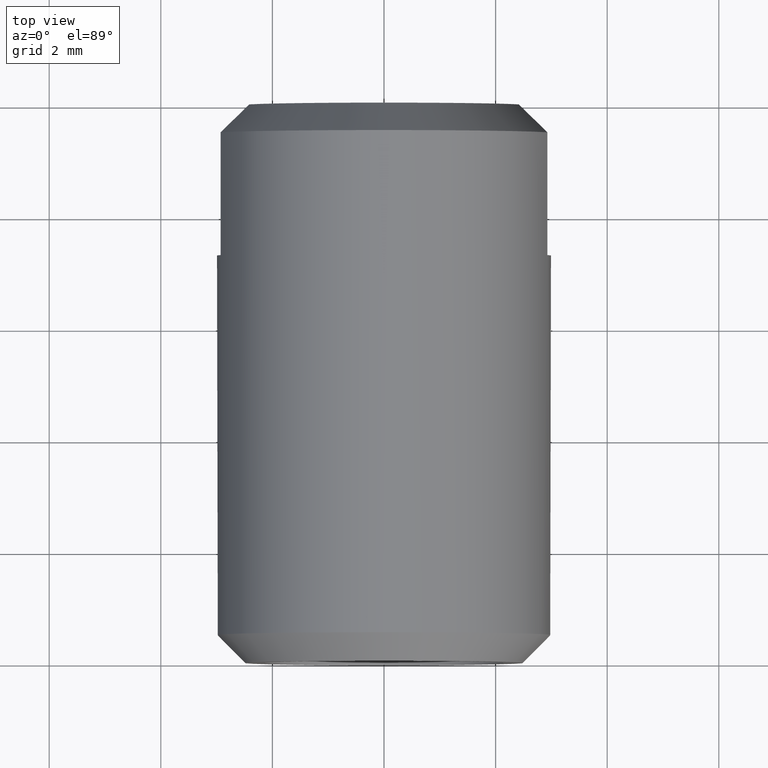
[diagram: clean part render]
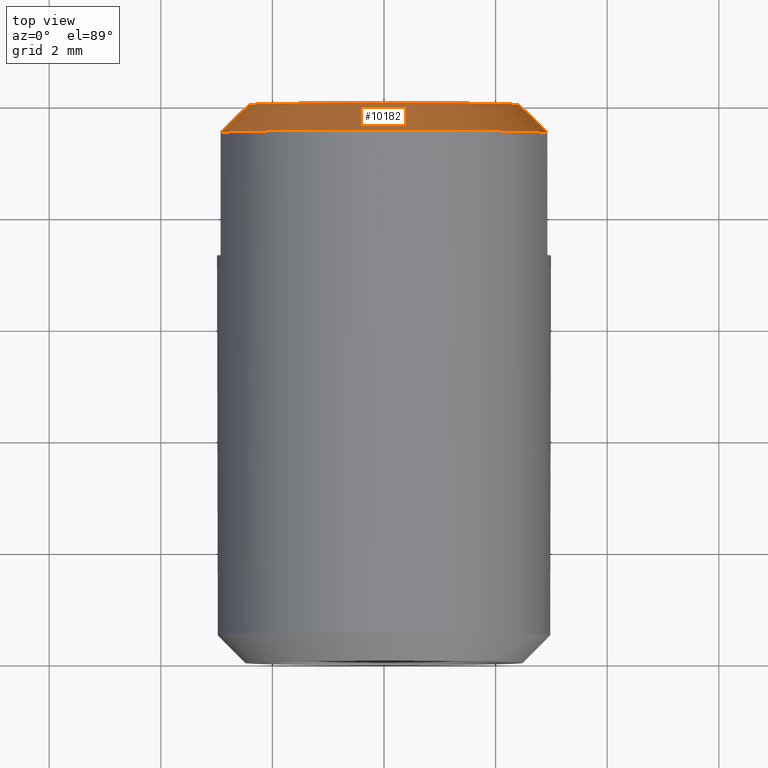
[diagram: same view with one face highlighted and labeled with its STEP entity id]
A machine part, top view. The second image highlights one B-rep face of the part: STEP entity #10182.
In plain terms, the highlighted conical surface has half-angle 45 deg.
Its self-contained STEP definition (entity closure, byte-faithful):
#372 = AXIS2_PLACEMENT_3D ( 'NONE', #9549, #14296, #7017 ) ;
#377 = EDGE_CURVE ( 'NONE', #1728, #11293, #15597, .T. ) ;
#660 = CARTESIAN_POINT ( 'NONE',  ( -2.928736929121494200, 9.500000000000000000, 0.6500000000000004700 ) ) ;
#1126 = CIRCLE ( 'NONE', #1577, 3.000000000000000000 ) ;
#1163 = CONICAL_SURFACE ( 'NONE', #6546, 3.000000000000000000, 0.7853981633974500600 ) ;
#1241 = CARTESIAN_POINT ( 'NONE',  ( 2.928736929121496900, 9.499999999999998200, 0.6499999999999999100 ) ) ;
#1577 = AXIS2_PLACEMENT_3D ( 'NONE', #15683, #3372, #9374 ) ;
#1728 = VERTEX_POINT ( 'NONE', #7981 ) ;
#2469 = VERTEX_POINT ( 'NONE', #15617 ) ;
#2811 = CARTESIAN_POINT ( 'NONE',  ( 2.414021540914660100, 10.00000000000000000, 0.6499999999999999100 ) ) ;
#3372 = DIRECTION ( 'NONE',  ( -0.0000000000000000000, -1.000000000000000000, -0.0000000000000000000 ) ) ;
#3466 = ORIENTED_EDGE ( 'NONE', *, *, #9850, .F. ) ;
#5298 = CARTESIAN_POINT ( 'NONE',  ( 2.586095618865052800, 9.833843787677890800, 0.6499999999999999100 ) ) ;
#5663 = ORIENTED_EDGE ( 'NONE', *, *, #5742, .F. ) ;
#5742 = EDGE_CURVE ( 'NONE', #2469, #11696, #12481, .T. ) ;
#5816 = ORIENTED_EDGE ( 'NONE', *, *, #377, .F. ) ;
#6546 = AXIS2_PLACEMENT_3D ( 'NONE', #7167, #8387, #7223 ) ;
#7017 = DIRECTION ( 'NONE',  ( 0.0000000000000000000, 0.0000000000000000000, 1.000000000000000000 ) ) ;
#7167 = CARTESIAN_POINT ( 'NONE',  ( 0.0000000000000000000, 9.500000000000000000, 0.0000000000000000000 ) ) ;
#7223 = DIRECTION ( 'NONE',  ( 0.0000000000000000000, 0.0000000000000000000, -1.000000000000000000 ) ) ;
#7981 = CARTESIAN_POINT ( 'NONE',  ( 2.414021540914660100, 10.00000000000000000, 0.6499999999999999100 ) ) ;
#8387 = DIRECTION ( 'NONE',  ( -0.0000000000000000000, -1.000000000000000000, -0.0000000000000000000 ) ) ;
#9283 = CARTESIAN_POINT ( 'NONE',  ( -2.757578815405588000, 9.667092362786181800, 0.6500000000000004700 ) ) ;
#9374 = DIRECTION ( 'NONE',  ( 0.0000000000000000000, 0.0000000000000000000, 1.000000000000000000 ) ) ;
#9549 = CARTESIAN_POINT ( 'NONE',  ( 0.0000000000000000000, 10.00000000000000000, 0.0000000000000000000 ) ) ;
#9850 = EDGE_CURVE ( 'NONE', #11696, #1728, #11780, .T. ) ;
#9975 = CARTESIAN_POINT ( 'NONE',  ( 2.757581466765122600, 9.667089774407989100, 0.6499999999999999100 ) ) ;
#10182 = ADVANCED_FACE ( 'NONE', ( #12531 ), #1163, .T. ) ;
#11293 = VERTEX_POINT ( 'NONE', #14691 ) ;
#11355 = EDGE_LOOP ( 'NONE', ( #5663, #13481, #5816, #3466 ) ) ;
#11630 = CARTESIAN_POINT ( 'NONE',  ( -2.586092403099344000, 9.833846892848965700, 0.6500000000000004700 ) ) ;
#11696 = VERTEX_POINT ( 'NONE', #15644 ) ;
#11780 = CIRCLE ( 'NONE', #372, 2.499999999999997800 ) ;
#12198 = EDGE_CURVE ( 'NONE', #11293, #2469, #1126, .T. ) ;
#12481 = B_SPLINE_CURVE_WITH_KNOTS ( 'NONE', 3,
 ( #660, #9283, #11630, #15318 ),
 .UNSPECIFIED., .F., .F.,
 ( 4, 4 ),
 ( 0.005136716158415992500, 0.005854303722699029000 ),
 .UNSPECIFIED. ) ;
#12531 = FACE_OUTER_BOUND ( 'NONE', #11355, .T. ) ;
#13481 = ORIENTED_EDGE ( 'NONE', *, *, #12198, .F. ) ;
#14296 = DIRECTION ( 'NONE',  ( 0.0000000000000000000, 1.000000000000000000, 0.0000000000000000000 ) ) ;
#14691 = CARTESIAN_POINT ( 'NONE',  ( 2.928736929121496900, 9.499999999999998200, 0.6499999999999999100 ) ) ;
#15318 = CARTESIAN_POINT ( 'NONE',  ( -2.414021540914660100, 10.00000000000000000, 0.6500000000000004700 ) ) ;
#15597 = B_SPLINE_CURVE_WITH_KNOTS ( 'NONE', 3,
 ( #2811, #5298, #9975, #1241 ),
 .UNSPECIFIED., .F., .F.,
 ( 4, 4 ),
 ( 0.01200799052394914400, 0.01272352744226161300 ),
 .UNSPECIFIED. ) ;
#15617 = CARTESIAN_POINT ( 'NONE',  ( -2.928736929121494200, 9.500000000000000000, 0.6500000000000004700 ) ) ;
#15644 = CARTESIAN_POINT ( 'NONE',  ( -2.414021540914660100, 10.00000000000000000, 0.6500000000000004700 ) ) ;
#15683 = CARTESIAN_POINT ( 'NONE',  ( 0.0000000000000000000, 9.500000000000000000, 0.0000000000000000000 ) ) ;